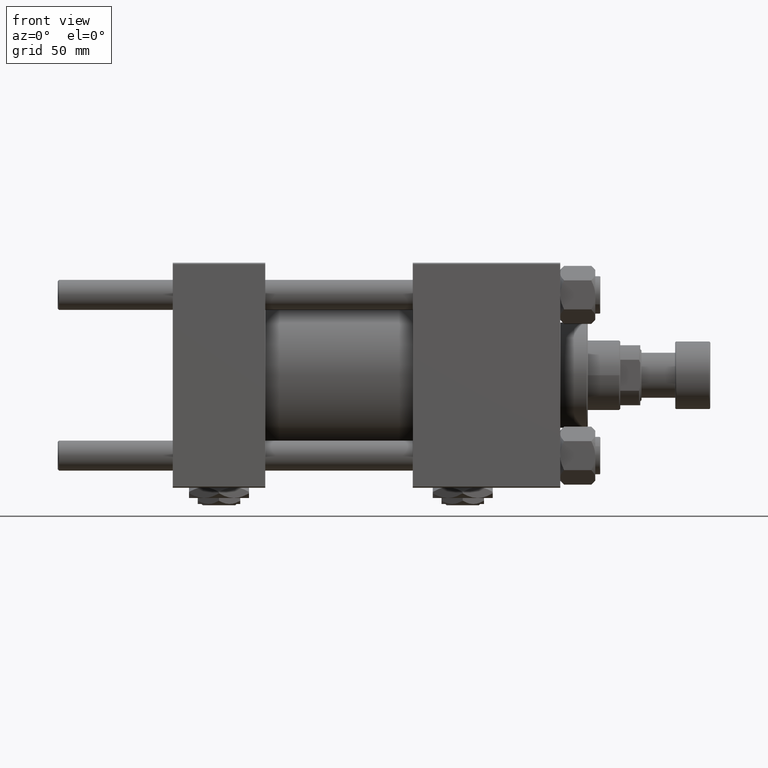
[diagram: clean part render]
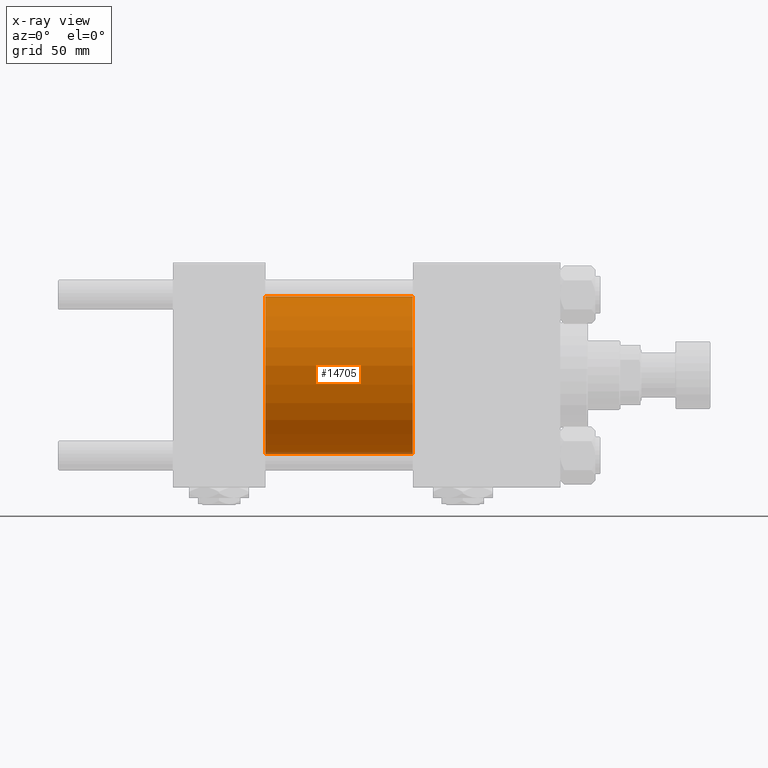
[diagram: x-ray — body ghosted, one internal face saturated and labeled with its STEP entity id]
A machine part, front view, then the same camera in x-ray: the body is ghosted and one INTERNAL B-rep face — a face not visible from any outside direction — is saturated and labeled: STEP entity #14705.
In plain terms, the highlighted cylindrical surface (partial cylindrical patch) has radius 31.5 mm, axis along (-1, -0, -0).
Its self-contained STEP definition (entity closure, byte-faithful):
#469 = CARTESIAN_POINT ( 'NONE',  ( 37.00000000000000000, 0.000000000000000000, 0.000000000000000000 ) ) ;
#579 = CARTESIAN_POINT ( 'NONE',  ( 37.00000000000000000, 0.000000000000000000, 31.50000000000000000 ) ) ;
#5679 = VECTOR ( 'NONE', #27609, 1000.000000000000000 ) ;
#7672 = DIRECTION ( 'NONE',  ( -1.000000000000000000, -0.000000000000000000, -0.000000000000000000 ) ) ;
#10992 = ORIENTED_EDGE ( 'NONE', *, *, #19233, .F. ) ;
#14705 = ADVANCED_FACE ( 'NONE', ( #26745 ), #23798, .F. ) ;
#15438 = CARTESIAN_POINT ( 'NONE',  ( 96.00000000000000000, 0.000000000000000000, 31.50000000000000000 ) ) ;
#15623 = EDGE_CURVE ( 'NONE', #45251, #38423, #43571, .T. ) ;
#16623 = DIRECTION ( 'NONE',  ( 0.000000000000000000, 0.000000000000000000, -1.000000000000000000 ) ) ;
#16869 = ORIENTED_EDGE ( 'NONE', *, *, #15623, .T. ) ;
#18027 = CARTESIAN_POINT ( 'NONE',  ( 96.00000000000000000, 3.857637417314162689E-15, -31.50000000000000000 ) ) ;
#18797 = LINE ( 'NONE', #18027, #32766 ) ;
#19233 = EDGE_CURVE ( 'NONE', #45251, #50670, #35031, .T. ) ;
#19648 = CARTESIAN_POINT ( 'NONE',  ( 96.00000000000000000, 3.857637417314162689E-15, -31.50000000000000000 ) ) ;
#23798 = CYLINDRICAL_SURFACE ( 'NONE', #35923, 31.50000000000000000 ) ;
#24037 = CARTESIAN_POINT ( 'NONE',  ( 96.00000000000000000, 0.000000000000000000, 31.50000000000000000 ) ) ;
#24497 = EDGE_LOOP ( 'NONE', ( #16869, #24519, #44915, #10992 ) ) ;
#24519 = ORIENTED_EDGE ( 'NONE', *, *, #49871, .T. ) ;
#25973 = CIRCLE ( 'NONE', #43648, 31.50000000000000000 ) ;
#26745 = FACE_OUTER_BOUND ( 'NONE', #24497, .T. ) ;
#27609 = DIRECTION ( 'NONE',  ( -1.000000000000000000, -0.000000000000000000, -0.000000000000000000 ) ) ;
#31503 = CARTESIAN_POINT ( 'NONE',  ( 96.00000000000000000, 0.000000000000000000, 0.000000000000000000 ) ) ;
#32620 = CARTESIAN_POINT ( 'NONE',  ( 37.00000000000000000, 3.857637417314162689E-15, -31.50000000000000000 ) ) ;
#32766 = VECTOR ( 'NONE', #46321, 1000.000000000000000 ) ;
#35031 = LINE ( 'NONE', #15438, #5679 ) ;
#35701 = DIRECTION ( 'NONE',  ( 0.000000000000000000, 0.000000000000000000, 1.000000000000000000 ) ) ;
#35923 = AXIS2_PLACEMENT_3D ( 'NONE', #47598, #7672, #35701 ) ;
#38423 = VERTEX_POINT ( 'NONE', #19648 ) ;
#38610 = VERTEX_POINT ( 'NONE', #32620 ) ;
#39674 = DIRECTION ( 'NONE',  ( 0.000000000000000000, 0.000000000000000000, -1.000000000000000000 ) ) ;
#40679 = DIRECTION ( 'NONE',  ( 1.000000000000000000, 0.000000000000000000, 0.000000000000000000 ) ) ;
#43571 = CIRCLE ( 'NONE', #49472, 31.50000000000000000 ) ;
#43648 = AXIS2_PLACEMENT_3D ( 'NONE', #469, #40679, #16623 ) ;
#44479 = EDGE_CURVE ( 'NONE', #50670, #38610, #25973, .T. ) ;
#44915 = ORIENTED_EDGE ( 'NONE', *, *, #44479, .F. ) ;
#45251 = VERTEX_POINT ( 'NONE', #24037 ) ;
#46321 = DIRECTION ( 'NONE',  ( -1.000000000000000000, -0.000000000000000000, -0.000000000000000000 ) ) ;
#47598 = CARTESIAN_POINT ( 'NONE',  ( 96.00000000000000000, 0.000000000000000000, 0.000000000000000000 ) ) ;
#48136 = DIRECTION ( 'NONE',  ( 1.000000000000000000, 0.000000000000000000, 0.000000000000000000 ) ) ;
#49472 = AXIS2_PLACEMENT_3D ( 'NONE', #31503, #48136, #39674 ) ;
#49871 = EDGE_CURVE ( 'NONE', #38423, #38610, #18797, .T. ) ;
#50670 = VERTEX_POINT ( 'NONE', #579 ) ;